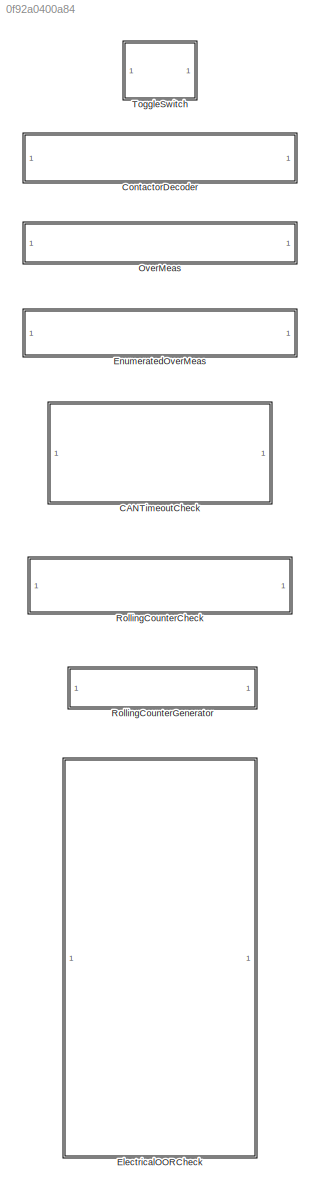
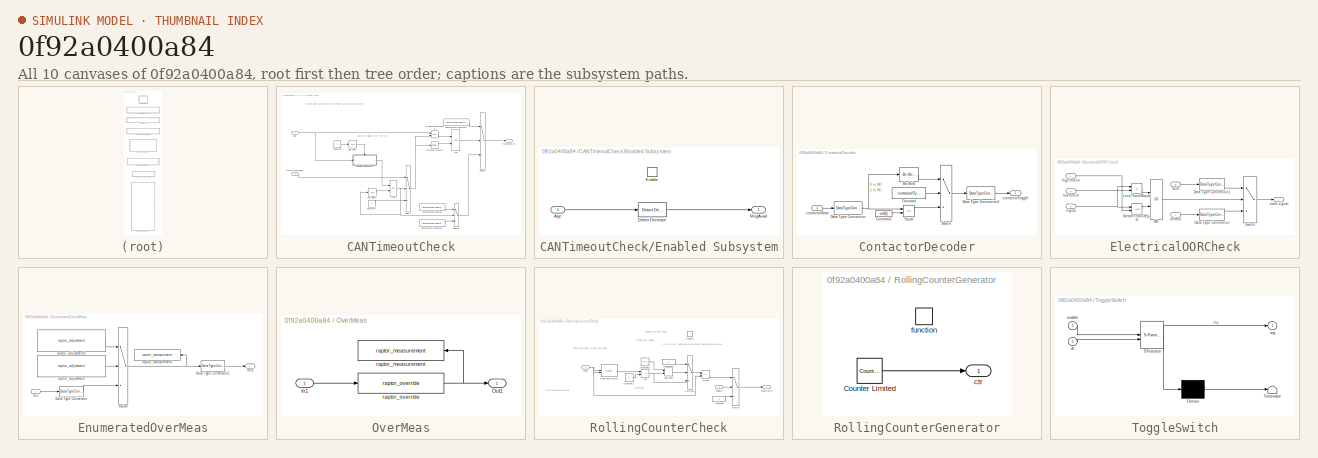
[diagram: thumbnail index - all 10 canvases of the model, root first then tree order]
MODEL slx_0f92a0400a84
KIND library
CONFIG AbsTol = auto
CONFIG EnableMultiTasking = off
CONFIG FixedStep = auto
CONFIG MaxStep = auto
CONFIG MinStep = auto
CONFIG RelTol = 1e-3
CONFIG SampleTimeConstraint = Unconstrained
CONFIG SolverName = VariableStepAuto
CONFIG StartTime = 0.0
CONFIG StopTime = 10.0
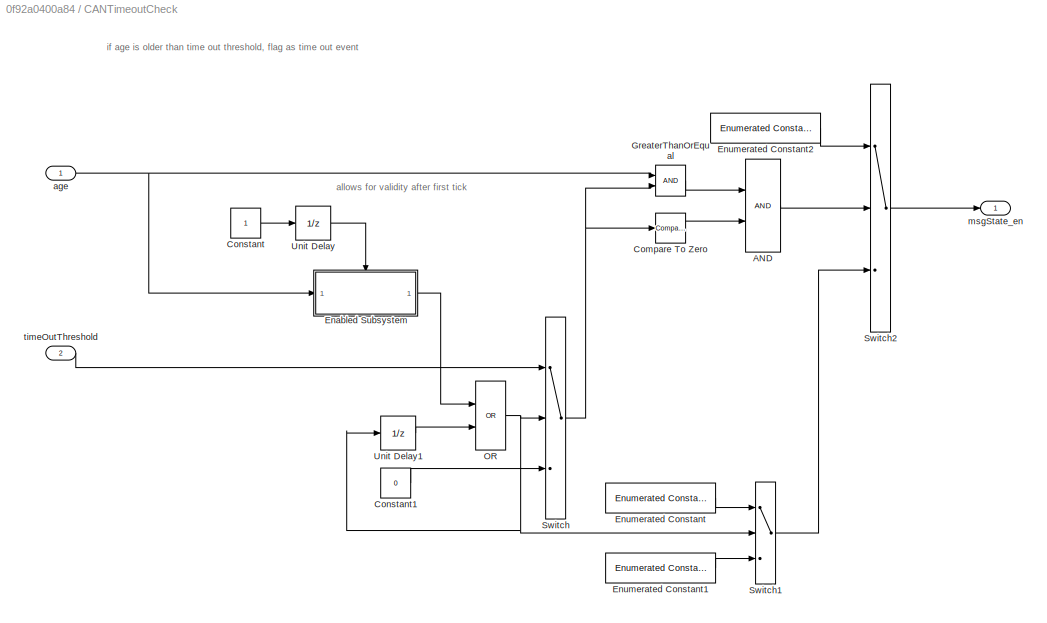
BLOCK [SubSystem] CANTimeoutCheck
BLOCK [Logic] CANTimeoutCheck/AND
  AllPortsSameDT = off
  OutDataTypeStr = boolean
BLOCK [Reference] CANTimeoutCheck/Compare To Zero  REF=simulink/Logic and Bit
Operations/Compare
To Zero
  SourceBlock = simulink/Logic and Bit\nOperations/Compare\nTo Zero
  SourceType = Compare To Zero
BLOCK [Constant] CANTimeoutCheck/Constant
  OutDataTypeStr = boolean
BLOCK [Constant] CANTimeoutCheck/Constant1
  OutDataTypeStr = boolean
  Value = 0
BLOCK [SubSystem] CANTimeoutCheck/Enabled Subsystem
  TreatAsAtomicUnit = on
BLOCK [Inport] CANTimeoutCheck/Enabled Subsystem/Age
BLOCK [Reference] CANTimeoutCheck/Enabled Subsystem/Detect Decrease  REF=simulink/Logic and Bit
Operations/Detect
Decrease
  SourceBlock = simulink/Logic and Bit\nOperations/Detect\nDecrease
  SourceType = Detect Decrease
BLOCK [EnablePort] CANTimeoutCheck/Enabled Subsystem/Enable
BLOCK [Outport] CANTimeoutCheck/Enabled Subsystem/MsgAvail
BLOCK [Reference] CANTimeoutCheck/Enumerated Constant  REF=simulink/Sources/Enumerated
Constant
  SourceBlock = simulink/Sources/Enumerated\nConstant
  SourceType = Enumerated Constant
BLOCK [Reference] CANTimeoutCheck/Enumerated Constant1  REF=simulink/Sources/Enumerated
Constant
  SourceBlock = simulink/Sources/Enumerated\nConstant
  SourceType = Enumerated Constant
BLOCK [Reference] CANTimeoutCheck/Enumerated Constant2  REF=simulink/Sources/Enumerated
Constant
  SourceBlock = simulink/Sources/Enumerated\nConstant
  SourceType = Enumerated Constant
BLOCK [RelationalOperator] CANTimeoutCheck/GreaterThanOrEqual
  InputSameDT = off
  OutDataTypeStr = boolean
  RndMeth = Simplest
BLOCK [Logic] CANTimeoutCheck/OR
  AllPortsSameDT = off
  Operator = OR
  OutDataTypeStr = boolean
BLOCK [Switch] CANTimeoutCheck/Switch
  Criteria = u2 ~= 0
  InputSameDT = off
  SaturateOnIntegerOverflow = off
BLOCK [Switch] CANTimeoutCheck/Switch1
  Criteria = u2 ~= 0
  InputSameDT = off
  SaturateOnIntegerOverflow = off
BLOCK [Switch] CANTimeoutCheck/Switch2
  Criteria = u2 ~= 0
  InputSameDT = off
  SaturateOnIntegerOverflow = off
BLOCK [UnitDelay] CANTimeoutCheck/Unit Delay
  HasFrameUpgradeWarning = on
  SampleTime = -1
BLOCK [UnitDelay] CANTimeoutCheck/Unit Delay1
  HasFrameUpgradeWarning = on
  SampleTime = -1
BLOCK [Inport] CANTimeoutCheck/age
BLOCK [Outport] CANTimeoutCheck/msgState_en
  AttributesFormatString = %<held>
BLOCK [Inport] CANTimeoutCheck/timeOutThreshold
  Port = 2
BLOCK [SubSystem] ContactorDecoder
BLOCK [Reference] ContactorDecoder/Bit Shift  REF=hdlsllib/Logic and Bit
Operations/Bit Shift
  SourceBlock = hdlsllib/Logic and Bit\nOperations/Bit Shift
  SourceType = Bit Shift
BLOCK [Constant] ContactorDecoder/Constant
  OutDataTypeStr = boolean
  Value = contactorType
BLOCK [Constant] ContactorDecoder/Constant1
  Value = uint8(1)
BLOCK [DataTypeConversion] ContactorDecoder/Data Type Conversion
  OutDataTypeStr = uint8
  RndMeth = Floor
  SaturateOnIntegerOverflow = off
BLOCK [DataTypeConversion] ContactorDecoder/Data Type Conversion1
  OutDataTypeStr = boolean
  RndMeth = Floor
  SaturateOnIntegerOverflow = off
BLOCK [RelationalOperator] ContactorDecoder/Equal
  InputSameDT = off
  Operator = ==
  OutDataTypeStr = boolean
  RndMeth = Simplest
BLOCK [Switch] ContactorDecoder/Switch
  Criteria = u2 ~= 0
  InputSameDT = off
  SaturateOnIntegerOverflow = off
BLOCK [Inport] ContactorDecoder/contactorState
BLOCK [Outport] ContactorDecoder/contactorToggle
BLOCK [SubSystem] ElectricalOORCheck
BLOCK [DataTypeConversion] ElectricalOORCheck/Data Type Conversion
  OutDataTypeStr = Enum: StateSignal
  RndMeth = Floor
  SaturateOnIntegerOverflow = off
BLOCK [DataTypeConversion] ElectricalOORCheck/Data Type Conversion1
  OutDataTypeStr = Enum: StateSignal
  RndMeth = Floor
  SaturateOnIntegerOverflow = off
BLOCK [RelationalOperator] ElectricalOORCheck/GreaterThanOrEqual
  InputSameDT = off
  OutDataTypeStr = boolean
  RndMeth = Simplest
BLOCK [RelationalOperator] ElectricalOORCheck/LessThanOrEqual
  InputSameDT = off
  Operator = <=
  OutDataTypeStr = boolean
  RndMeth = Simplest
BLOCK [Logic] ElectricalOORCheck/OR
  AllPortsSameDT = off
  Operator = OR
  OutDataTypeStr = boolean
BLOCK [Switch] ElectricalOORCheck/Switch
  Criteria = u2 ~= 0
  InputSameDT = off
  SaturateOnIntegerOverflow = off
BLOCK [Inport] ElectricalOORCheck/default
  Port = 4
BLOCK [Inport] ElectricalOORCheck/fault
  Port = 5
BLOCK [Inport] ElectricalOORCheck/high thresh
BLOCK [Inport] ElectricalOORCheck/low thresh
  Port = 2
BLOCK [Inport] ElectricalOORCheck/signal
  Port = 3
BLOCK [Outport] ElectricalOORCheck/state signal
BLOCK [SubSystem] EnumeratedOverMeas
BLOCK [DataTypeConversion] EnumeratedOverMeas/Data Type Conversion
  OutDataTypeStr = uint8
  RndMeth = Floor
  SaturateOnIntegerOverflow = off
BLOCK [DataTypeConversion] EnumeratedOverMeas/Data Type Conversion1
  OutDataTypeStr = Enum: StateCAN
  RndMeth = Floor
  SaturateOnIntegerOverflow = off
BLOCK [Inport] EnumeratedOverMeas/In1
BLOCK [Outport] EnumeratedOverMeas/Out1
BLOCK [Switch] EnumeratedOverMeas/Switch
  Criteria = u2 ~= 0
  InputSameDT = off
  SaturateOnIntegerOverflow = off
BLOCK [Reference] EnumeratedOverMeas/raptor_adjustment  REF=Raptor_lib/Data Storage/raptor_adjustment
  SourceBlock = Raptor_lib/Data Storage/raptor_adjustment
  SourceProductName = Raptor
  SourceType = Adjustment
BLOCK [Reference] EnumeratedOverMeas/raptor_adjustment1  REF=Raptor_lib/Data Storage/raptor_adjustment
  SourceBlock = Raptor_lib/Data Storage/raptor_adjustment
  SourceProductName = Raptor
  SourceType = Adjustment
BLOCK [Reference] EnumeratedOverMeas/raptor_measurement  REF=Raptor_lib/Data Storage/raptor_measurement
  NameLocation = top
  SourceBlock = Raptor_lib/Data Storage/raptor_measurement
  SourceProductName = Raptor
  SourceType = Measurement
BLOCK [SubSystem] OverMeas
BLOCK [Inport] OverMeas/In1
BLOCK [Outport] OverMeas/Out1
BLOCK [Reference] OverMeas/raptor_measurement  REF=Raptor_lib/Data Storage/raptor_measurement
  NameLocation = top
  SourceBlock = Raptor_lib/Data Storage/raptor_measurement
  SourceProductName = Raptor
  SourceType = Measurement
BLOCK [Reference] OverMeas/raptor_override  REF=Raptor_lib/Data Storage/raptor_override
  SourceBlock = Raptor_lib/Data Storage/raptor_override
  SourceProductName = Raptor
  SourceType = Override
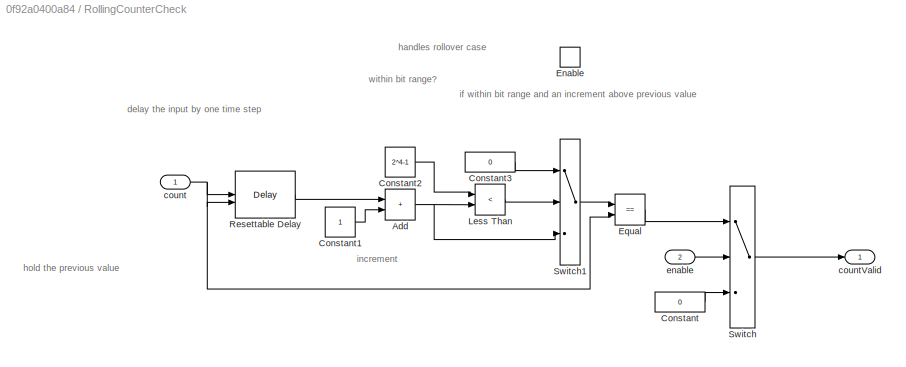
BLOCK [SubSystem] RollingCounterCheck
  TreatAsAtomicUnit = on
BLOCK [Sum] RollingCounterCheck/Add
  IconShape = rectangular
BLOCK [Constant] RollingCounterCheck/Constant
  OutDataTypeStr = boolean
  Value = 0
BLOCK [Constant] RollingCounterCheck/Constant1
BLOCK [Constant] RollingCounterCheck/Constant2
  Value = 2^4-1
BLOCK [Constant] RollingCounterCheck/Constant3
  OutDataTypeStr = boolean
  Value = 0
BLOCK [EnablePort] RollingCounterCheck/Enable
BLOCK [RelationalOperator] RollingCounterCheck/Equal
  InputSameDT = off
  Operator = ==
  OutDataTypeStr = boolean
  RndMeth = Simplest
BLOCK [RelationalOperator] RollingCounterCheck/Less Than
  InputSameDT = off
  Operator = <
  OutDataTypeStr = boolean
  RndMeth = Simplest
BLOCK [Delay] RollingCounterCheck/Resettable Delay
  DelayLength = 1
  InitialConditionSource = Input port
  InputPortMap = u0,p4
BLOCK [Switch] RollingCounterCheck/Switch
  Criteria = u2 ~= 0
  InputSameDT = off
  SaturateOnIntegerOverflow = off
BLOCK [Switch] RollingCounterCheck/Switch1
  Criteria = u2 ~= 0
  InputSameDT = off
  SaturateOnIntegerOverflow = off
BLOCK [Inport] RollingCounterCheck/count
BLOCK [Outport] RollingCounterCheck/countValid
BLOCK [Inport] RollingCounterCheck/enable
  Port = 2
BLOCK [SubSystem] RollingCounterGenerator
  TreatAsAtomicUnit = on
BLOCK [Reference] RollingCounterGenerator/Counter Limited  REF=simulink/Sources/Counter
Limited
  SourceBlock = simulink/Sources/Counter\nLimited
  SourceType = Counter Limited
BLOCK [Outport] RollingCounterGenerator/ctr
BLOCK [TriggerPort] RollingCounterGenerator/function
  StatesWhenEnabling = held
  TriggerType = function-call
  VariantControl = (inherit)
BLOCK [SubSystem] ToggleSwitch
  ErrorFcn = Stateflow.Translate.translate
  PermitHierarchicalResolution = ExplicitOnly
  SFBlockType = Chart
  TreatAsAtomicUnit = on
BLOCK [Demux] ToggleSwitch/ Demux 
  Outputs = 1
BLOCK [S-Function] ToggleSwitch/ SFunction 
  EnableBusSupport = off
  FunctionName = sf_sfun
  PortCounts = [2 2]
  SFcnIsStateOwnerBlock = off
  SFunctionDeploymentMode = off
  Tag = Stateflow S-Function 2
BLOCK [Terminator] ToggleSwitch/ Terminator 
BLOCK [Inport] ToggleSwitch/dt
  Port = 2
BLOCK [Inport] ToggleSwitch/enable
BLOCK [Outport] ToggleSwitch/sig
ANNOTATION CANTimeoutCheck: allows for validity after first tick
ANNOTATION CANTimeoutCheck: if age is older than time out threshold, flag as time out event
ANNOTATION ContactorDecoder: 0 is NO
ANNOTATION ContactorDecoder: 1 is NC
ANNOTATION RollingCounterCheck: delay the input by one time step
ANNOTATION RollingCounterCheck: handles rollover case
ANNOTATION RollingCounterCheck: hold the previous value
ANNOTATION RollingCounterCheck: if within bit range and an increment above previous value
ANNOTATION RollingCounterCheck: increment
ANNOTATION RollingCounterCheck: within bit range?
LINE CANTimeoutCheck/AND:1 -> CANTimeoutCheck/Switch2:2
LINE CANTimeoutCheck/Compare To Zero:1 -> CANTimeoutCheck/AND:2
LINE CANTimeoutCheck/Constant1:1 -> CANTimeoutCheck/Switch:3
LINE CANTimeoutCheck/Constant:1 -> CANTimeoutCheck/Unit Delay:1
LINE CANTimeoutCheck/Enabled Subsystem/Age:1 -> CANTimeoutCheck/Enabled Subsystem/Detect Decrease:1
LINE CANTimeoutCheck/Enabled Subsystem/Detect Decrease:1 -> CANTimeoutCheck/Enabled Subsystem/MsgAvail:1
LINE CANTimeoutCheck/Enabled Subsystem:1 -> CANTimeoutCheck/OR:1
LINE CANTimeoutCheck/Enumerated Constant1:1 -> CANTimeoutCheck/Switch1:3
LINE CANTimeoutCheck/Enumerated Constant2:1 -> CANTimeoutCheck/Switch2:1
LINE CANTimeoutCheck/Enumerated Constant:1 -> CANTimeoutCheck/Switch1:1
LINE CANTimeoutCheck/GreaterThanOrEqual:1 -> CANTimeoutCheck/AND:1
NET CANTimeoutCheck/OR:1 -> CANTimeoutCheck/Switch1:2, CANTimeoutCheck/Switch:2, CANTimeoutCheck/Unit Delay1:1
LINE CANTimeoutCheck/Switch1:1 -> CANTimeoutCheck/Switch2:3
LINE CANTimeoutCheck/Switch2:1 -> CANTimeoutCheck/msgState_en:1
NET CANTimeoutCheck/Switch:1 -> CANTimeoutCheck/Compare To Zero:1, CANTimeoutCheck/GreaterThanOrEqual:2
LINE CANTimeoutCheck/Unit Delay1:1 -> CANTimeoutCheck/OR:2
LINE CANTimeoutCheck/Unit Delay:1 -> CANTimeoutCheck/Enabled Subsystem:enable
NET CANTimeoutCheck/age:1 -> CANTimeoutCheck/Enabled Subsystem:1, CANTimeoutCheck/GreaterThanOrEqual:1
LINE CANTimeoutCheck/timeOutThreshold:1 -> CANTimeoutCheck/Switch:1
LINE ElectricalOORCheck/Data Type Conversion1:1 -> ElectricalOORCheck/Switch:1
LINE ElectricalOORCheck/Data Type Conversion:1 -> ElectricalOORCheck/Switch:3
LINE ElectricalOORCheck/GreaterThanOrEqual:1 -> ElectricalOORCheck/OR:2
LINE ElectricalOORCheck/LessThanOrEqual:1 -> ElectricalOORCheck/OR:1
LINE ElectricalOORCheck/OR:1 -> ElectricalOORCheck/Switch:2
LINE ElectricalOORCheck/Switch:1 -> ElectricalOORCheck/state signal:1
LINE ElectricalOORCheck/default:1 -> ElectricalOORCheck/Data Type Conversion:1
LINE ElectricalOORCheck/fault:1 -> ElectricalOORCheck/Data Type Conversion1:1
LINE ElectricalOORCheck/high thresh:1 -> ElectricalOORCheck/GreaterThanOrEqual:2
LINE ElectricalOORCheck/low thresh:1 -> ElectricalOORCheck/LessThanOrEqual:2
NET ElectricalOORCheck/signal:1 -> ElectricalOORCheck/GreaterThanOrEqual:1, ElectricalOORCheck/LessThanOrEqual:1
NET RollingCounterCheck/Add:1 -> RollingCounterCheck/Less Than:2, RollingCounterCheck/Switch1:3
LINE RollingCounterCheck/Constant1:1 -> RollingCounterCheck/Add:2
LINE RollingCounterCheck/Constant2:1 -> RollingCounterCheck/Less Than:1
LINE RollingCounterCheck/Constant3:1 -> RollingCounterCheck/Switch1:1
LINE RollingCounterCheck/Constant:1 -> RollingCounterCheck/Switch:3
LINE RollingCounterCheck/Equal:1 -> RollingCounterCheck/Switch:1
LINE RollingCounterCheck/Less Than:1 -> RollingCounterCheck/Switch1:2
LINE RollingCounterCheck/Resettable Delay:1 -> RollingCounterCheck/Add:1
LINE RollingCounterCheck/Switch1:1 -> RollingCounterCheck/Equal:1
LINE RollingCounterCheck/Switch:1 -> RollingCounterCheck/countValid:1
NET RollingCounterCheck/count:1 -> RollingCounterCheck/Equal:2, RollingCounterCheck/Resettable Delay:1, RollingCounterCheck/Resettable Delay:2
LINE RollingCounterCheck/enable:1 -> RollingCounterCheck/Switch:2
LINE RollingCounterGenerator/Counter Limited:1 -> RollingCounterGenerator/ctr:1
note: NET lines group one-source signal fan-out (src -> all destinations, sorted); 1:1 wires keep LINE
CHART ToggleSwitch states=3 transitions=3
  STATE_LABEL 'should be 100ms condition'
  STATE_LABEL 'Off\nen:\ntimer = 0;\nsig = false;\ndu:\ntimer = timer + dt;\n'
  STATE_LABEL 'On\nen:\nsig = true;\n'
CHART  states=0 transitions=0
